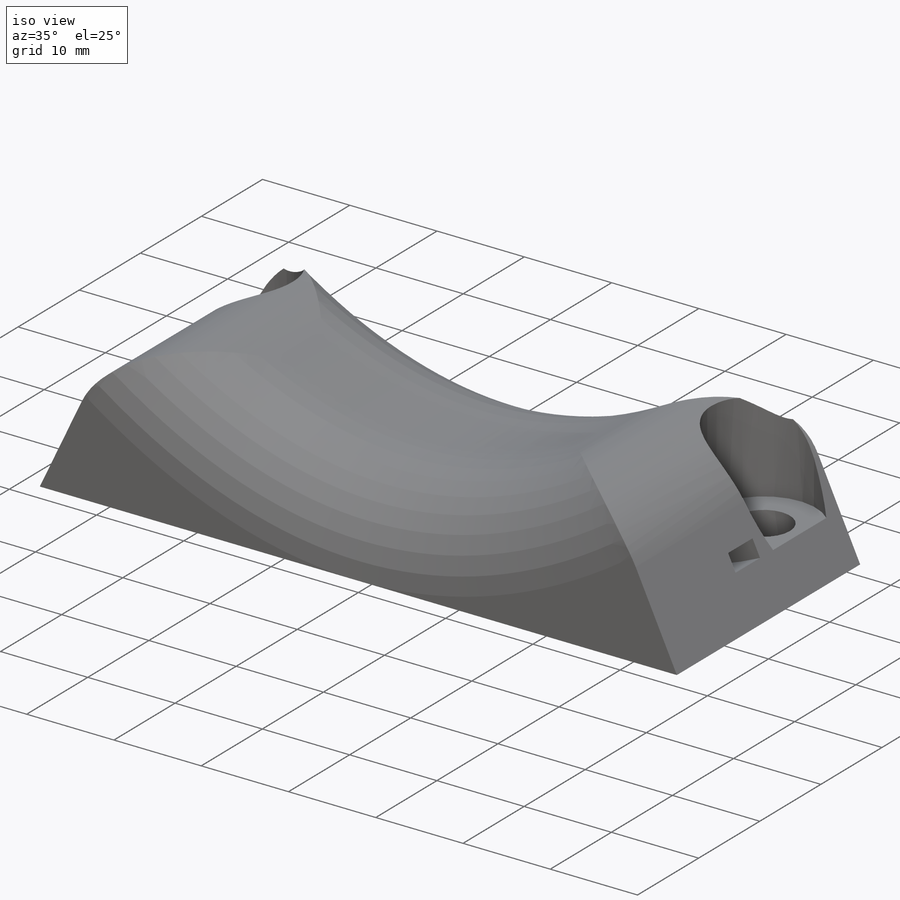
[diagram: iso view]
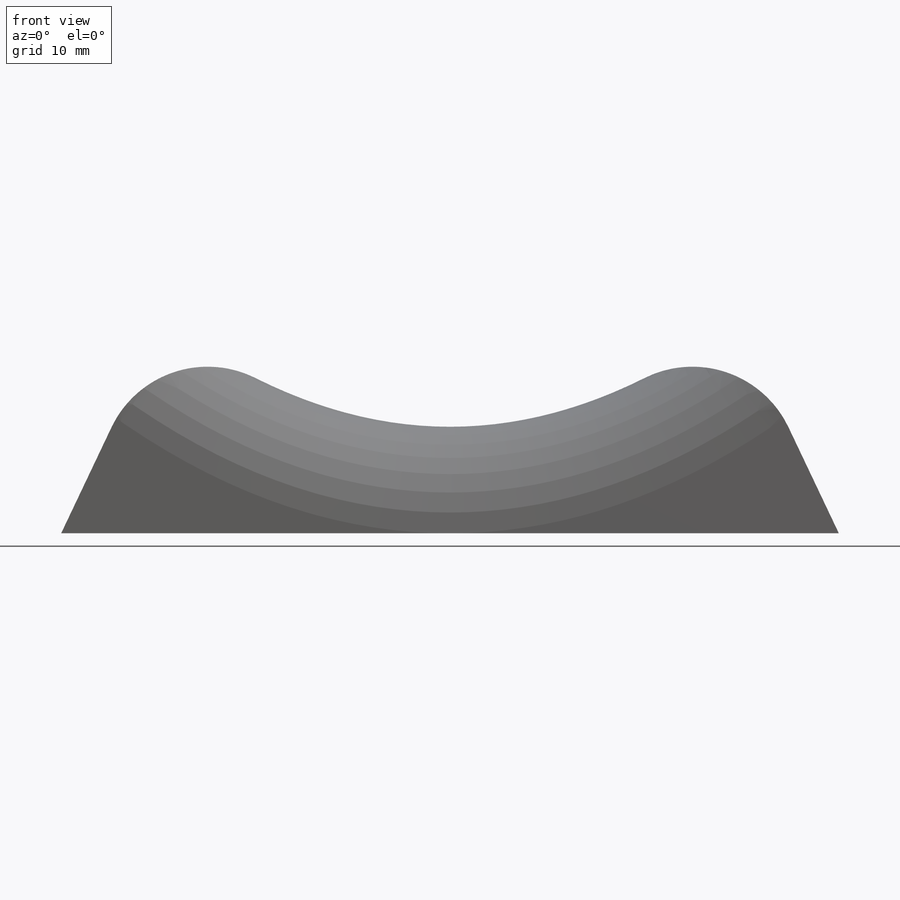
[diagram: front view]
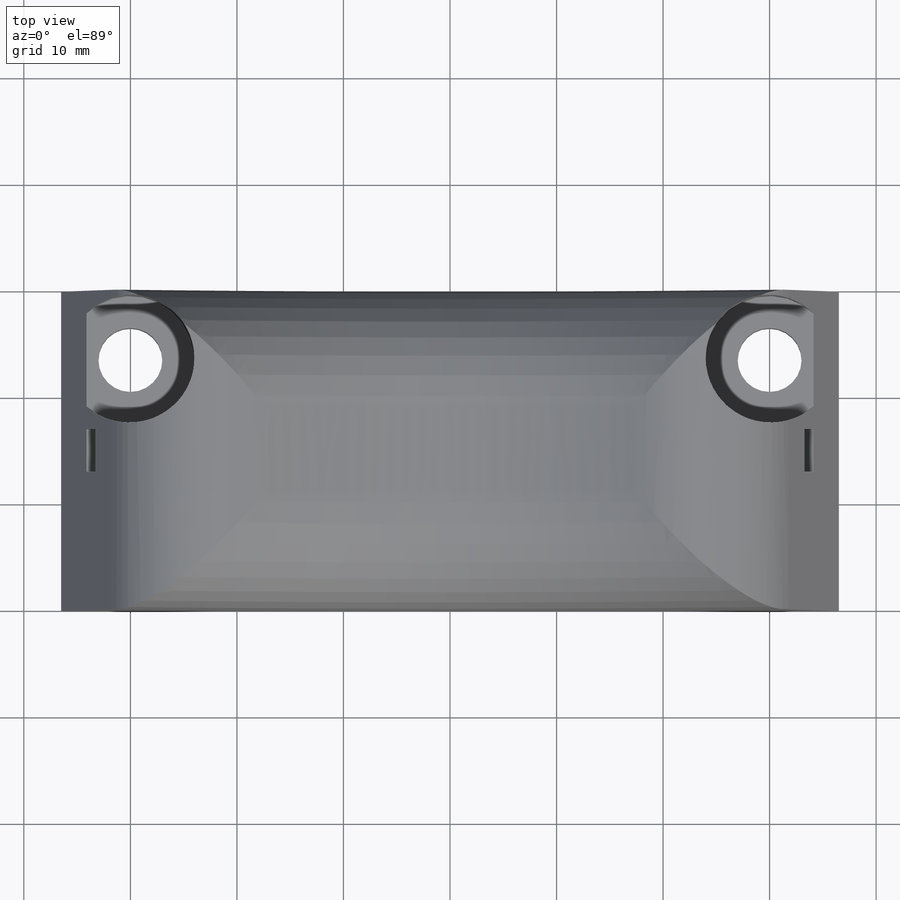
[diagram: top view]
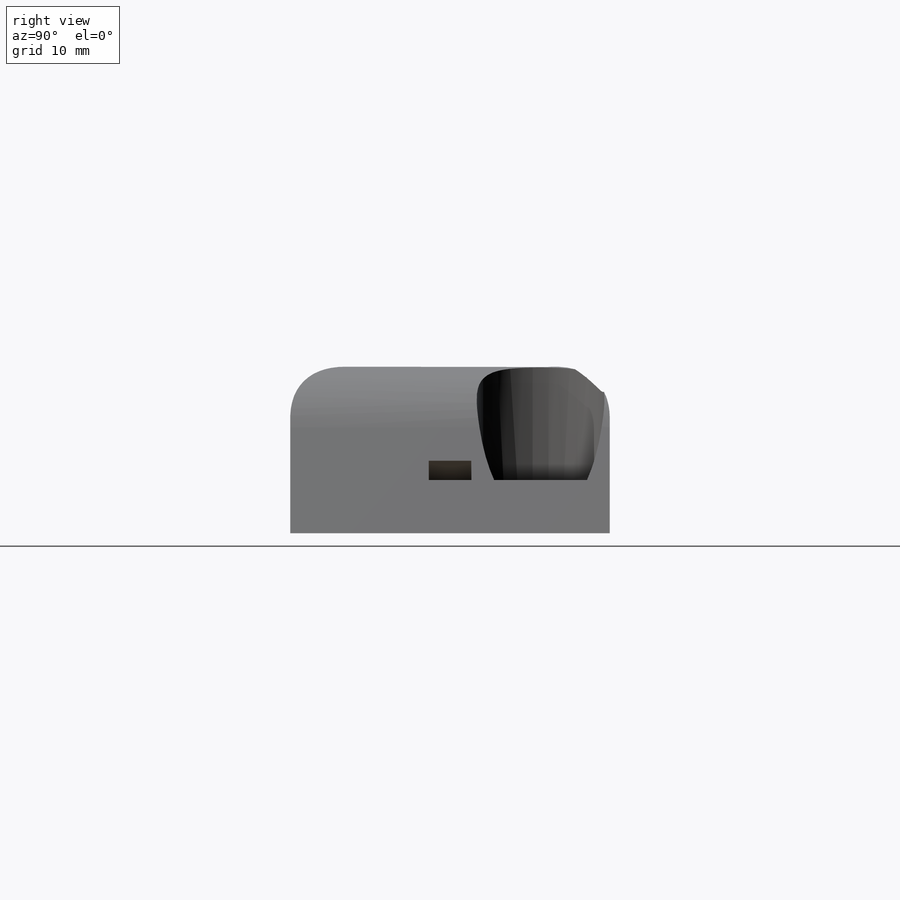
[diagram: right view]
SOLIDWORKS PART (.sldprt)
format: sldprt  version: not decoded by parser v0  size: 271,360 bytes
history: native  units: mm
features: sketch x4, cut_extrude x3, plane x2, material x1, extrude x1, fillet x1 (+13 scaffold rows collapsed)
feature tree (25):
  scaffold x13  (default folders/planes/origin — collapsed)
  material  "Material <not specified>"
  sketch  "Sketch1"  dims[D1=18.5mm D2=35.0mm D3=50.0mm D4=54.0mm D5=73.0mm D6=40.0mm]
  extrude  "Boss-Extrude1"  Depth=30mm
  fillet  "Fillet1"  Radius=10mm
  sketch  "Sketch2"  dims[D2=6.0mm D3=6.0mm D1=60.0mm D4=6.5mm]
  cut_extrude  "Cut-Extrude1"  [1 undecoded]
  plane  "Plane1"  Offset=5mm
  sketch  "Sketch3"  dims[D1=12.0mm D2=12.0mm]
  cut_extrude  "Cut-Extrude2"  [1 undecoded]
  plane  "Plane2"  Offset=15mm
  sketch  "Sketch4"  dims[D1=5.0mm D2=2.0mm]
  cut_extrude  "Cut-Extrude3"  Depth=2mm
decode coverage: 7 of 9 modeling features carry decoded parameters
note: 2 parameter values undecoded
note: suppression state not decoded; provenance and decode notes live in map.json
